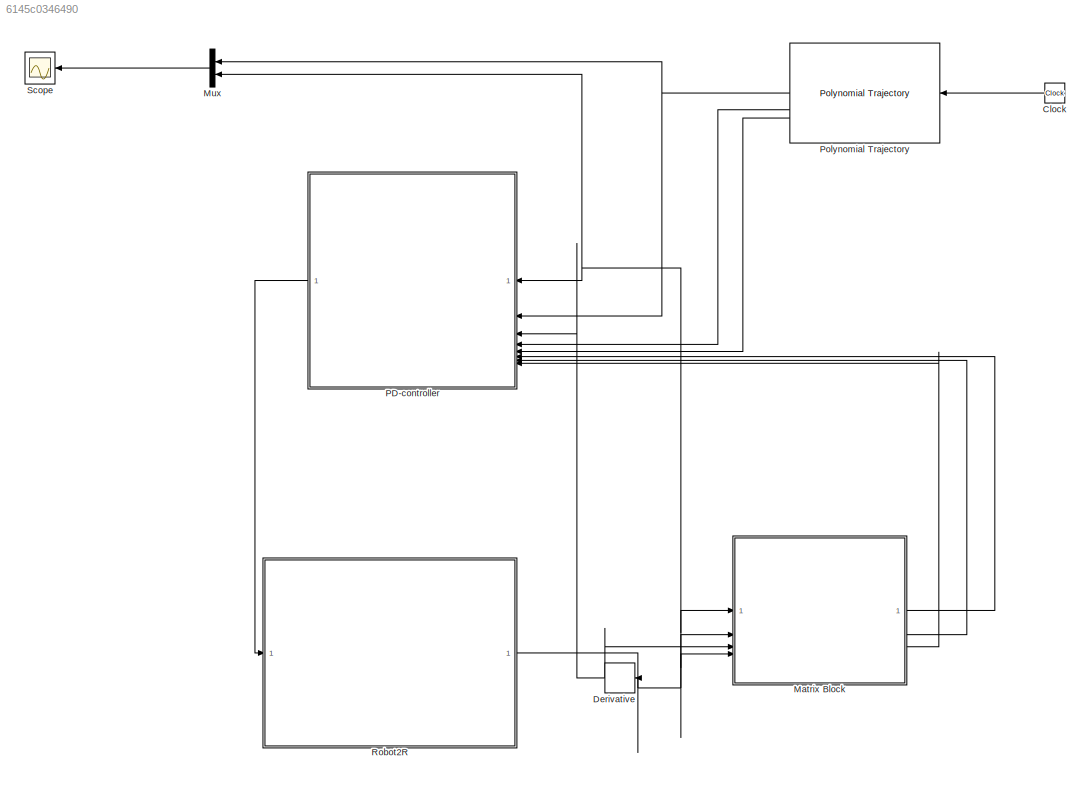
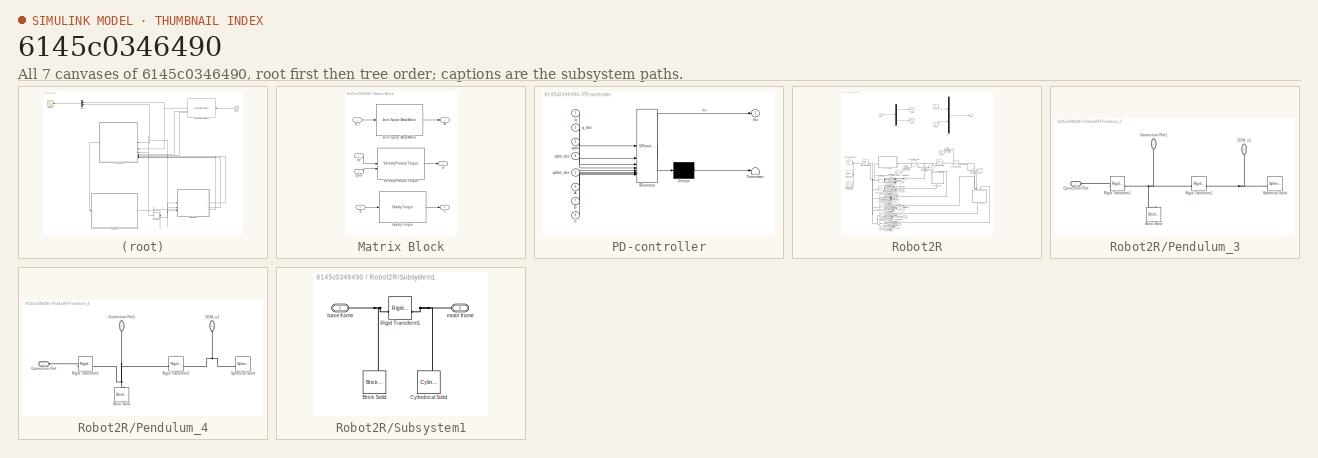
[diagram: thumbnail index - all 7 canvases of the model, root first then tree order]
MODEL slx_6145c0346490
KIND model
CONFIG AbsTol = 1e-3
CONFIG EnableMultiTasking = on
CONFIG FixedStep = auto
CONFIG MaxStep = auto
CONFIG MinStep = auto
CONFIG RelTol = 1e-3
CONFIG SampleTimeConstraint = Unconstrained
CONFIG SolverName = VariableStepAuto
CONFIG StartTime = 0.0
CONFIG StopTime = 100
BLOCK [Clock] Clock
BLOCK [Derivative] Derivative
BLOCK [SubSystem] Matrix Block
BLOCK [Outport] Matrix Block/A
BLOCK [Outport] Matrix Block/B
  Port = 2
BLOCK [Outport] Matrix Block/C
  Port = 3
BLOCK [Reference] Matrix Block/Gravity Torque  REF=robotmaniplib/Gravity Torque
  SourceBlock = robotmaniplib/Gravity Torque
  SourceType = Gravity Torque
BLOCK [Reference] Matrix Block/Joint Space Mass Matrix  REF=robotmaniplib/Joint Space Mass Matrix
  SourceBlock = robotmaniplib/Joint Space Mass Matrix
  SourceType = Joint Space Mass Matrix
BLOCK [Reference] Matrix Block/Velocity Product Torque  REF=robotmaniplib/Velocity Product Torque
  SourceBlock = robotmaniplib/Velocity Product Torque
  SourceType = Velocity Product Torque
BLOCK [Inport] Matrix Block/q
  Port = 4
BLOCK [Inport] Matrix Block/q_r
BLOCK [Inport] Matrix Block/qdot
  Port = 3
BLOCK [Inport] Matrix Block/qr
  Port = 2
BLOCK [Mux] Mux
  DisplayOption = bar
  Inputs = 2
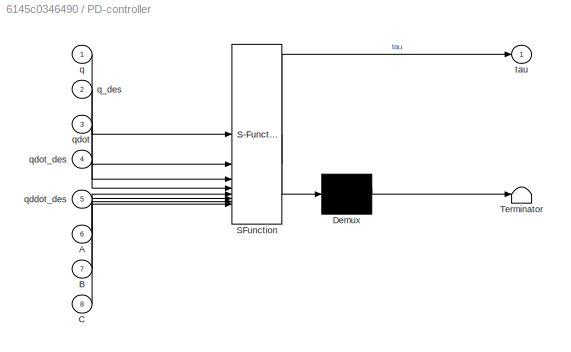
BLOCK [SubSystem] PD-controller
  ErrorFcn = Stateflow.Translate.translate
  LibrarySourceBlock = simulink/User-Defined\nFunctions/MATLAB Function
  PermitHierarchicalResolution = ExplicitOnly
  SFBlockType = MATLAB Function
  TreatAsAtomicUnit = on
BLOCK [Demux] PD-controller/ Demux 
  Outputs = 1
BLOCK [S-Function] PD-controller/ SFunction 
  EnableBusSupport = on
  FunctionName = sf_sfun
  PortCounts = [8 2]
  SFcnIsStateOwnerBlock = off
  SFunctionDeploymentMode = off
  Tag = Stateflow S-Function 1
BLOCK [Terminator] PD-controller/ Terminator 
BLOCK [Inport] PD-controller/A
  Port = 6
BLOCK [Inport] PD-controller/B
  Port = 7
BLOCK [Inport] PD-controller/C
  Port = 8
BLOCK [Inport] PD-controller/q
BLOCK [Inport] PD-controller/q_des
  Port = 2
BLOCK [Inport] PD-controller/qddot_des
  Port = 5
BLOCK [Inport] PD-controller/qdot
  Port = 3
BLOCK [Inport] PD-controller/qdot_des
  Port = 4
BLOCK [Outport] PD-controller/tau
BLOCK [Reference] Polynomial Trajectory  REF=robotcorelib/Polynomial Trajectory
  LibrarySourceBlock = robotutilslib/Polynomial Trajectory
  SourceBlock = robotcorelib/Polynomial Trajectory
  SourceType = robotics.slcore.internal.block.PolyTrajSys
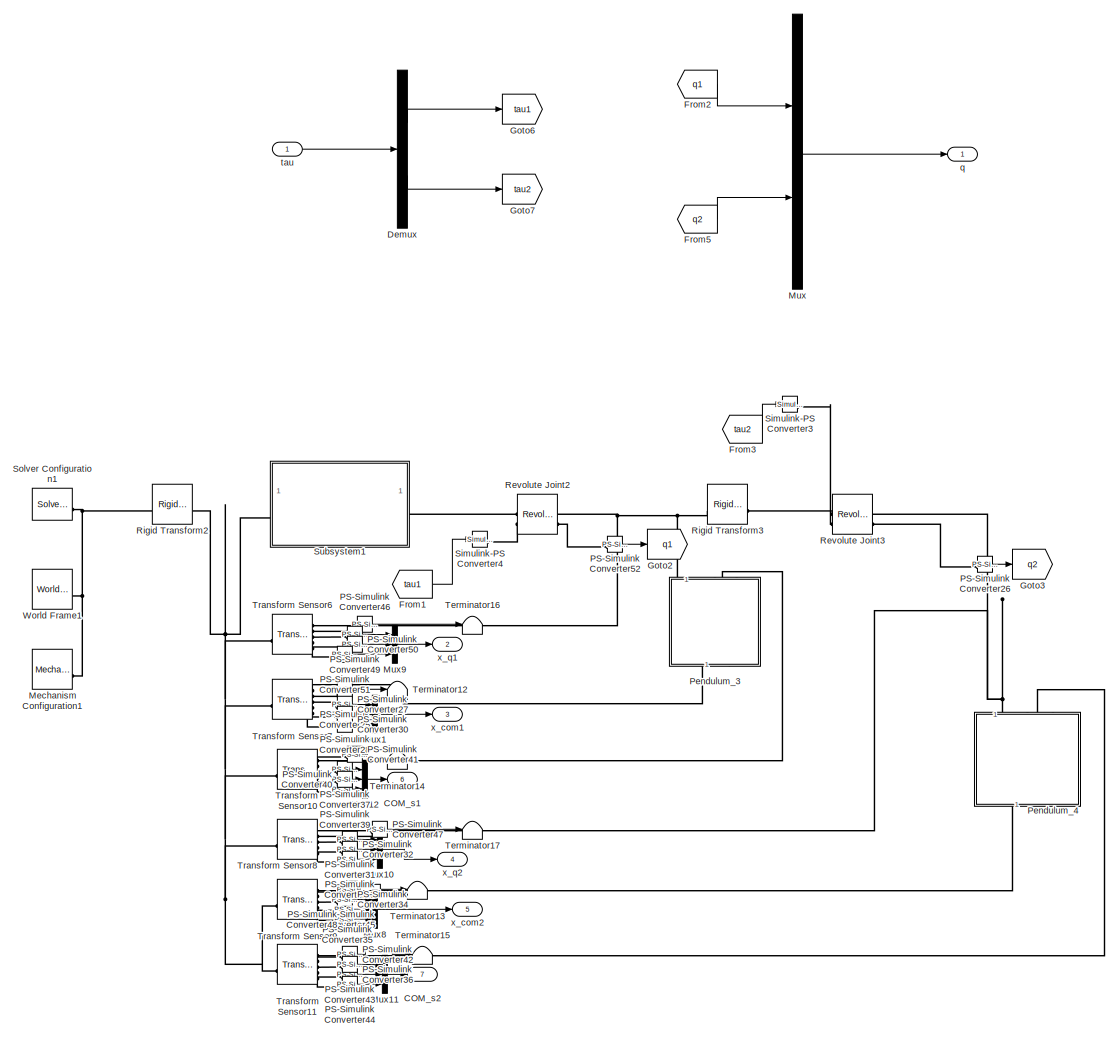
[diagram: Robot2R - part 1/1, most of the canvas]
BLOCK [SubSystem] Robot2R
BLOCK [Outport] Robot2R/COM_s1
  Port = 6
BLOCK [Outport] Robot2R/COM_s2
  Port = 7
BLOCK [Demux] Robot2R/Demux
  Outputs = 2
BLOCK [From] Robot2R/From1
  GotoTag = tau1
BLOCK [From] Robot2R/From2
  GotoTag = q1
BLOCK [From] Robot2R/From3
  GotoTag = tau2
BLOCK [From] Robot2R/From5
  GotoTag = q2
BLOCK [Goto] Robot2R/Goto2
  GotoTag = q1
BLOCK [Goto] Robot2R/Goto3
  GotoTag = q2
BLOCK [Goto] Robot2R/Goto6
  GotoTag = tau1
BLOCK [Goto] Robot2R/Goto7
  GotoTag = tau2
BLOCK [Reference] Robot2R/Mechanism Configuration1  REF=sm_lib/Utilities/Mechanism
Configuration
  SourceBlock = sm_lib/Utilities/Mechanism\nConfiguration
  SourceType = Mechanism\nConfiguration
BLOCK [Mux] Robot2R/Mux
  DisplayOption = bar
  Inputs = 2
BLOCK [Mux] Robot2R/Mux1
  DisplayOption = bar
  Inputs = 3
BLOCK [Mux] Robot2R/Mux10
  DisplayOption = bar
  Inputs = 3
BLOCK [Mux] Robot2R/Mux11
  DisplayOption = bar
  Inputs = 3
BLOCK [Mux] Robot2R/Mux12
  DisplayOption = bar
  Inputs = 3
BLOCK [Mux] Robot2R/Mux8
  DisplayOption = bar
  Inputs = 3
BLOCK [Mux] Robot2R/Mux9
  DisplayOption = bar
  Inputs = 3
BLOCK [Reference] Robot2R/PS-Simulink Converter25  REF=nesl_utility/PS-Simulink
Converter
  SourceBlock = nesl_utility/PS-Simulink\nConverter
  SourceType = PS-Simulink\nConverter
BLOCK [Reference] Robot2R/PS-Simulink Converter26  REF=nesl_utility/PS-Simulink
Converter
  SourceBlock = nesl_utility/PS-Simulink\nConverter
  SourceType = PS-Simulink\nConverter
BLOCK [Reference] Robot2R/PS-Simulink Converter27  REF=nesl_utility/PS-Simulink
Converter
  SourceBlock = nesl_utility/PS-Simulink\nConverter
  SourceType = PS-Simulink\nConverter
BLOCK [Reference] Robot2R/PS-Simulink Converter28  REF=nesl_utility/PS-Simulink
Converter
  SourceBlock = nesl_utility/PS-Simulink\nConverter
  SourceType = PS-Simulink\nConverter
BLOCK [Reference] Robot2R/PS-Simulink Converter30  REF=nesl_utility/PS-Simulink
Converter
  SourceBlock = nesl_utility/PS-Simulink\nConverter
  SourceType = PS-Simulink\nConverter
BLOCK [Reference] Robot2R/PS-Simulink Converter31  REF=nesl_utility/PS-Simulink
Converter
  SourceBlock = nesl_utility/PS-Simulink\nConverter
  SourceType = PS-Simulink\nConverter
BLOCK [Reference] Robot2R/PS-Simulink Converter32  REF=nesl_utility/PS-Simulink
Converter
  SourceBlock = nesl_utility/PS-Simulink\nConverter
  SourceType = PS-Simulink\nConverter
BLOCK [Reference] Robot2R/PS-Simulink Converter33  REF=nesl_utility/PS-Simulink
Converter
  SourceBlock = nesl_utility/PS-Simulink\nConverter
  SourceType = PS-Simulink\nConverter
BLOCK [Reference] Robot2R/PS-Simulink Converter34  REF=nesl_utility/PS-Simulink
Converter
  SourceBlock = nesl_utility/PS-Simulink\nConverter
  SourceType = PS-Simulink\nConverter
BLOCK [Reference] Robot2R/PS-Simulink Converter35  REF=nesl_utility/PS-Simulink
Converter
  SourceBlock = nesl_utility/PS-Simulink\nConverter
  SourceType = PS-Simulink\nConverter
BLOCK [Reference] Robot2R/PS-Simulink Converter36  REF=nesl_utility/PS-Simulink
Converter
  SourceBlock = nesl_utility/PS-Simulink\nConverter
  SourceType = PS-Simulink\nConverter
BLOCK [Reference] Robot2R/PS-Simulink Converter37  REF=nesl_utility/PS-Simulink
Converter
  SourceBlock = nesl_utility/PS-Simulink\nConverter
  SourceType = PS-Simulink\nConverter
BLOCK [Reference] Robot2R/PS-Simulink Converter39  REF=nesl_utility/PS-Simulink
Converter
  SourceBlock = nesl_utility/PS-Simulink\nConverter
  SourceType = PS-Simulink\nConverter
BLOCK [Reference] Robot2R/PS-Simulink Converter40  REF=nesl_utility/PS-Simulink
Converter
  SourceBlock = nesl_utility/PS-Simulink\nConverter
  SourceType = PS-Simulink\nConverter
BLOCK [Reference] Robot2R/PS-Simulink Converter41  REF=nesl_utility/PS-Simulink
Converter
  SourceBlock = nesl_utility/PS-Simulink\nConverter
  SourceType = PS-Simulink\nConverter
BLOCK [Reference] Robot2R/PS-Simulink Converter42  REF=nesl_utility/PS-Simulink
Converter
  SourceBlock = nesl_utility/PS-Simulink\nConverter
  SourceType = PS-Simulink\nConverter
BLOCK [Reference] Robot2R/PS-Simulink Converter43  REF=nesl_utility/PS-Simulink
Converter
  SourceBlock = nesl_utility/PS-Simulink\nConverter
  SourceType = PS-Simulink\nConverter
BLOCK [Reference] Robot2R/PS-Simulink Converter44  REF=nesl_utility/PS-Simulink
Converter
  SourceBlock = nesl_utility/PS-Simulink\nConverter
  SourceType = PS-Simulink\nConverter
BLOCK [Reference] Robot2R/PS-Simulink Converter45  REF=nesl_utility/PS-Simulink
Converter
  SourceBlock = nesl_utility/PS-Simulink\nConverter
  SourceType = PS-Simulink\nConverter
BLOCK [Reference] Robot2R/PS-Simulink Converter46  REF=nesl_utility/PS-Simulink
Converter
  SourceBlock = nesl_utility/PS-Simulink\nConverter
  SourceType = PS-Simulink\nConverter
BLOCK [Reference] Robot2R/PS-Simulink Converter47  REF=nesl_utility/PS-Simulink
Converter
  SourceBlock = nesl_utility/PS-Simulink\nConverter
  SourceType = PS-Simulink\nConverter
BLOCK [Reference] Robot2R/PS-Simulink Converter48  REF=nesl_utility/PS-Simulink
Converter
  SourceBlock = nesl_utility/PS-Simulink\nConverter
  SourceType = PS-Simulink\nConverter
BLOCK [Reference] Robot2R/PS-Simulink Converter49  REF=nesl_utility/PS-Simulink
Converter
  SourceBlock = nesl_utility/PS-Simulink\nConverter
  SourceType = PS-Simulink\nConverter
BLOCK [Reference] Robot2R/PS-Simulink Converter50  REF=nesl_utility/PS-Simulink
Converter
  SourceBlock = nesl_utility/PS-Simulink\nConverter
  SourceType = PS-Simulink\nConverter
BLOCK [Reference] Robot2R/PS-Simulink Converter51  REF=nesl_utility/PS-Simulink
Converter
  SourceBlock = nesl_utility/PS-Simulink\nConverter
  SourceType = PS-Simulink\nConverter
BLOCK [Reference] Robot2R/PS-Simulink Converter52  REF=nesl_utility/PS-Simulink
Converter
  SourceBlock = nesl_utility/PS-Simulink\nConverter
  SourceType = PS-Simulink\nConverter
BLOCK [SubSystem] Robot2R/Pendulum_3
  NameLocation = left
BLOCK [Reference] Robot2R/Pendulum_3/Brick Solid  REF=sm_lib/Body Elements/Brick Solid
  NameLocation = right
  SourceBlock = sm_lib/Body Elements/Brick Solid
  SourceType = Brick Solid
BLOCK [PMIOPort] Robot2R/Pendulum_3/COM_s1
  NameLocation = left
  Port = 3
  Side = Left
BLOCK [PMIOPort] Robot2R/Pendulum_3/Connection Port
  Side = Left
BLOCK [PMIOPort] Robot2R/Pendulum_3/Connection Port1
  NameLocation = left
  Port = 2
  Side = Right
BLOCK [Reference] Robot2R/Pendulum_3/Rigid Transform1  REF=sm_lib/Frames and
Transforms/Rigid
Transform
  SourceBlock = sm_lib/Frames and\nTransforms/Rigid\nTransform
  SourceType = Rigid\nTransform
BLOCK [Reference] Robot2R/Pendulum_3/Rigid Transform2  REF=sm_lib/Frames and
Transforms/Rigid
Transform
  SourceBlock = sm_lib/Frames and\nTransforms/Rigid\nTransform
  SourceType = Rigid\nTransform
BLOCK [Reference] Robot2R/Pendulum_3/Spherical Solid  REF=sm_lib/Body Elements/Spherical Solid
  SourceBlock = sm_lib/Body Elements/Spherical Solid
  SourceType = Spherical Solid
BLOCK [SubSystem] Robot2R/Pendulum_4
  NameLocation = left
BLOCK [Reference] Robot2R/Pendulum_4/Brick Solid  REF=sm_lib/Body Elements/Brick Solid
  NameLocation = right
  SourceBlock = sm_lib/Body Elements/Brick Solid
  SourceType = Brick Solid
BLOCK [PMIOPort] Robot2R/Pendulum_4/COM_s2
  NameLocation = left
  Port = 3
  Side = Left
BLOCK [PMIOPort] Robot2R/Pendulum_4/Connection Port
  Side = Left
BLOCK [PMIOPort] Robot2R/Pendulum_4/Connection Port1
  NameLocation = left
  Port = 2
  Side = Right
BLOCK [Reference] Robot2R/Pendulum_4/Rigid Transform1  REF=sm_lib/Frames and
Transforms/Rigid
Transform
  SourceBlock = sm_lib/Frames and\nTransforms/Rigid\nTransform
  SourceType = Rigid\nTransform
BLOCK [Reference] Robot2R/Pendulum_4/Rigid Transform2  REF=sm_lib/Frames and
Transforms/Rigid
Transform
  SourceBlock = sm_lib/Frames and\nTransforms/Rigid\nTransform
  SourceType = Rigid\nTransform
BLOCK [Reference] Robot2R/Pendulum_4/Spherical Solid  REF=sm_lib/Body Elements/Spherical Solid
  SourceBlock = sm_lib/Body Elements/Spherical Solid
  SourceType = Spherical Solid
BLOCK [Reference] Robot2R/Revolute Joint2  REF=sm_lib/Joints/Revolute Joint
  SourceBlock = sm_lib/Joints/Revolute Joint
  SourceType = Revolute Joint
BLOCK [Reference] Robot2R/Revolute Joint3  REF=sm_lib/Joints/Revolute Joint
  SourceBlock = sm_lib/Joints/Revolute Joint
  SourceType = Revolute Joint
BLOCK [Reference] Robot2R/Rigid Transform2  REF=sm_lib/Frames and
Transforms/Rigid
Transform
  SourceBlock = sm_lib/Frames and\nTransforms/Rigid\nTransform
  SourceType = Rigid\nTransform
BLOCK [Reference] Robot2R/Rigid Transform3  REF=sm_lib/Frames and
Transforms/Rigid
Transform
  SourceBlock = sm_lib/Frames and\nTransforms/Rigid\nTransform
  SourceType = Rigid\nTransform
BLOCK [Reference] Robot2R/Simulink-PS Converter3  REF=nesl_utility/Simulink-PS
Converter
  SourceBlock = nesl_utility/Simulink-PS\nConverter
  SourceType = Simulink-PS\nConverter
BLOCK [Reference] Robot2R/Simulink-PS Converter4  REF=nesl_utility/Simulink-PS
Converter
  NameLocation = left
  SourceBlock = nesl_utility/Simulink-PS\nConverter
  SourceType = Simulink-PS\nConverter
BLOCK [Reference] Robot2R/Solver Configuration1  REF=nesl_utility/Solver
Configuration
  SourceBlock = nesl_utility/Solver\nConfiguration
  SourceType = Solver\nConfiguration
BLOCK [SubSystem] Robot2R/Subsystem1
BLOCK [Reference] Robot2R/Subsystem1/Brick Solid  REF=sm_lib/Body Elements/Brick Solid
  SourceBlock = sm_lib/Body Elements/Brick Solid
  SourceType = Brick Solid
BLOCK [Reference] Robot2R/Subsystem1/Cylindrical Solid  REF=sm_lib/Body Elements/Cylindrical Solid
  NameLocation = right
  SourceBlock = sm_lib/Body Elements/Cylindrical Solid
  SourceType = Cylindrical Solid
BLOCK [Reference] Robot2R/Subsystem1/Rigid Transform1  REF=sm_lib/Frames and
Transforms/Rigid
Transform
  SourceBlock = sm_lib/Frames and\nTransforms/Rigid\nTransform
  SourceType = Rigid\nTransform
BLOCK [PMIOPort] Robot2R/Subsystem1/base frame
  Side = Left
BLOCK [PMIOPort] Robot2R/Subsystem1/motor frame
  Port = 2
  Side = Right
BLOCK [Terminator] Robot2R/Terminator12
BLOCK [Terminator] Robot2R/Terminator13
BLOCK [Terminator] Robot2R/Terminator14
BLOCK [Terminator] Robot2R/Terminator15
BLOCK [Terminator] Robot2R/Terminator16
BLOCK [Terminator] Robot2R/Terminator17
BLOCK [Reference] Robot2R/Transform Sensor10  REF=sm_lib/Frames and
Transforms/Transform
Sensor
  SourceBlock = sm_lib/Frames and\nTransforms/Transform\nSensor
  SourceType = Transform\nSensor
BLOCK [Reference] Robot2R/Transform Sensor11  REF=sm_lib/Frames and
Transforms/Transform
Sensor
  SourceBlock = sm_lib/Frames and\nTransforms/Transform\nSensor
  SourceType = Transform\nSensor
BLOCK [Reference] Robot2R/Transform Sensor6  REF=sm_lib/Frames and
Transforms/Transform
Sensor
  SourceBlock = sm_lib/Frames and\nTransforms/Transform\nSensor
  SourceType = Transform\nSensor
BLOCK [Reference] Robot2R/Transform Sensor7  REF=sm_lib/Frames and
Transforms/Transform
Sensor
  SourceBlock = sm_lib/Frames and\nTransforms/Transform\nSensor
  SourceType = Transform\nSensor
BLOCK [Reference] Robot2R/Transform Sensor8  REF=sm_lib/Frames and
Transforms/Transform
Sensor
  SourceBlock = sm_lib/Frames and\nTransforms/Transform\nSensor
  SourceType = Transform\nSensor
BLOCK [Reference] Robot2R/Transform Sensor9  REF=sm_lib/Frames and
Transforms/Transform
Sensor
  SourceBlock = sm_lib/Frames and\nTransforms/Transform\nSensor
  SourceType = Transform\nSensor
BLOCK [Reference] Robot2R/World Frame1  REF=sm_lib/Frames and
Transforms/World Frame
  SourceBlock = sm_lib/Frames and\nTransforms/World Frame
  SourceType = World Frame
BLOCK [Outport] Robot2R/q
BLOCK [Inport] Robot2R/tau
BLOCK [Outport] Robot2R/x_com1
  Port = 3
BLOCK [Outport] Robot2R/x_com2
  Port = 5
BLOCK [Outport] Robot2R/x_q1
  Port = 2
BLOCK [Outport] Robot2R/x_q2
  Port = 4
BLOCK [Scope] Scope
  Floating = off
  NumInputPorts = 1
  ScopeSpecificationString = Simulink.scopes.TimeScopeBlockCfg('CurrentConfiguration', extmgr.ConfigurationSet(extmgr.Configuration('Core','General UI',true),extmgr.Configuration('Core','Source UI',true),extmgr.Configuration('Sources','WiredSimulink',true),extmgr.Configuration('Visuals','Time Domain',true,'SerializedDisplays',{struct('MinYLimReal','-2.39157','MaxYLimReal','1.52377','YLabelReal','','MinYLimMag','0.00000','MaxY...<+1491ch>
LINE Clock:1 -> Polynomial Trajectory:1
NET Derivative:1 -> Matrix Block:3, PD-controller:3
LINE Matrix Block/Gravity Torque:1 -> Matrix Block/C:1
LINE Matrix Block/Joint Space Mass Matrix:1 -> Matrix Block/A:1
LINE Matrix Block/Velocity Product Torque:1 -> Matrix Block/B:1
LINE Matrix Block/q:1 -> Matrix Block/Gravity Torque:1
LINE Matrix Block/q_r:1 -> Matrix Block/Joint Space Mass Matrix:1
LINE Matrix Block/qdot:1 -> Matrix Block/Velocity Product Torque:2
LINE Matrix Block/qr:1 -> Matrix Block/Velocity Product Torque:1
LINE Matrix Block:1 -> PD-controller:6
LINE Matrix Block:2 -> PD-controller:7
LINE Matrix Block:3 -> PD-controller:8
LINE Mux:1 -> Scope:1
LINE PD-controller:1 -> Robot2R:1
NET Polynomial Trajectory:1 -> Mux:1, PD-controller:2
LINE Polynomial Trajectory:2 -> PD-controller:4
LINE Polynomial Trajectory:3 -> PD-controller:5
LINE Robot2R/Demux:1 -> Robot2R/Goto6:1
LINE Robot2R/Demux:2 -> Robot2R/Goto7:1
LINE Robot2R/From1:1 -> Robot2R/Simulink-PS Converter4:1
LINE Robot2R/From2:1 -> Robot2R/Mux:1
LINE Robot2R/From3:1 -> Robot2R/Simulink-PS Converter3:1
LINE Robot2R/From5:1 -> Robot2R/Mux:2
LINE Robot2R/Mux10:1 -> Robot2R/x_q2:1
LINE Robot2R/Mux11:1 -> Robot2R/COM_s2:1
LINE Robot2R/Mux12:1 -> Robot2R/COM_s1:1
LINE Robot2R/Mux1:1 -> Robot2R/x_com1:1
LINE Robot2R/Mux8:1 -> Robot2R/x_com2:1
LINE Robot2R/Mux9:1 -> Robot2R/x_q1:1
LINE Robot2R/Mux:1 -> Robot2R/q:1
LINE Robot2R/PS-Simulink Converter25:1 -> Robot2R/Terminator12:1
LINE Robot2R/PS-Simulink Converter26:1 -> Robot2R/Goto3:1
LINE Robot2R/PS-Simulink Converter27:1 -> Robot2R/Mux1:1
LINE Robot2R/PS-Simulink Converter28:1 -> Robot2R/Mux1:2
LINE Robot2R/PS-Simulink Converter30:1 -> Robot2R/Mux1:3
LINE Robot2R/PS-Simulink Converter31:1 -> Robot2R/Mux10:1
LINE Robot2R/PS-Simulink Converter32:1 -> Robot2R/Mux10:2
LINE Robot2R/PS-Simulink Converter33:1 -> Robot2R/Mux10:3
LINE Robot2R/PS-Simulink Converter34:1 -> Robot2R/Mux8:1
LINE Robot2R/PS-Simulink Converter35:1 -> Robot2R/Mux8:2
LINE Robot2R/PS-Simulink Converter36:1 -> Robot2R/Mux11:2
LINE Robot2R/PS-Simulink Converter37:1 -> Robot2R/Mux12:1
LINE Robot2R/PS-Simulink Converter39:1 -> Robot2R/Mux12:3
LINE Robot2R/PS-Simulink Converter40:1 -> Robot2R/Mux12:2
LINE Robot2R/PS-Simulink Converter41:1 -> Robot2R/Terminator14:1
LINE Robot2R/PS-Simulink Converter42:1 -> Robot2R/Terminator15:1
LINE Robot2R/PS-Simulink Converter43:1 -> Robot2R/Mux11:1
LINE Robot2R/PS-Simulink Converter44:1 -> Robot2R/Mux11:3
LINE Robot2R/PS-Simulink Converter45:1 -> Robot2R/Terminator13:1
LINE Robot2R/PS-Simulink Converter46:1 -> Robot2R/Terminator16:1
LINE Robot2R/PS-Simulink Converter47:1 -> Robot2R/Terminator17:1
LINE Robot2R/PS-Simulink Converter48:1 -> Robot2R/Mux8:3
LINE Robot2R/PS-Simulink Converter49:1 -> Robot2R/Mux9:1
LINE Robot2R/PS-Simulink Converter50:1 -> Robot2R/Mux9:2
LINE Robot2R/PS-Simulink Converter51:1 -> Robot2R/Mux9:3
LINE Robot2R/PS-Simulink Converter52:1 -> Robot2R/Goto2:1
LINE Robot2R/tau:1 -> Robot2R/Demux:1
NET Robot2R:1 -> Derivative:1, Matrix Block:1, Matrix Block:2, Matrix Block:4, Mux:2, PD-controller:1
PNET net1: Robot2R/Mechanism Configuration1:RConn1 -- Robot2R/Rigid Transform2:LConn1 -- Robot2R/Solver Configuration1:RConn1 -- Robot2R/World Frame1:RConn1
PLINE Robot2R/PS-Simulink Converter25:LConn1 -- Robot2R/Transform Sensor7:RConn2
PLINE Robot2R/PS-Simulink Converter26:LConn1 -- Robot2R/Revolute Joint3:RConn2
PLINE Robot2R/PS-Simulink Converter27:LConn1 -- Robot2R/Transform Sensor7:RConn3
PLINE Robot2R/PS-Simulink Converter28:LConn1 -- Robot2R/Transform Sensor7:RConn4
PLINE Robot2R/PS-Simulink Converter30:LConn1 -- Robot2R/Transform Sensor7:RConn5
PLINE Robot2R/PS-Simulink Converter31:LConn1 -- Robot2R/Transform Sensor8:RConn3
PLINE Robot2R/PS-Simulink Converter32:LConn1 -- Robot2R/Transform Sensor8:RConn4
PLINE Robot2R/PS-Simulink Converter33:LConn1 -- Robot2R/Transform Sensor8:RConn5
PLINE Robot2R/PS-Simulink Converter34:LConn1 -- Robot2R/Transform Sensor9:RConn3
PLINE Robot2R/PS-Simulink Converter35:LConn1 -- Robot2R/Transform Sensor9:RConn4
PLINE Robot2R/PS-Simulink Converter36:LConn1 -- Robot2R/Transform Sensor11:RConn4
PLINE Robot2R/PS-Simulink Converter37:LConn1 -- Robot2R/Transform Sensor10:RConn3
PLINE Robot2R/PS-Simulink Converter39:LConn1 -- Robot2R/Transform Sensor10:RConn5
PLINE Robot2R/PS-Simulink Converter40:LConn1 -- Robot2R/Transform Sensor10:RConn4
PLINE Robot2R/PS-Simulink Converter41:LConn1 -- Robot2R/Transform Sensor10:RConn2
PLINE Robot2R/PS-Simulink Converter42:LConn1 -- Robot2R/Transform Sensor11:RConn2
PLINE Robot2R/PS-Simulink Converter43:LConn1 -- Robot2R/Transform Sensor11:RConn3
PLINE Robot2R/PS-Simulink Converter44:LConn1 -- Robot2R/Transform Sensor11:RConn5
PLINE Robot2R/PS-Simulink Converter45:LConn1 -- Robot2R/Transform Sensor9:RConn2
PLINE Robot2R/PS-Simulink Converter46:LConn1 -- Robot2R/Transform Sensor6:RConn2
PLINE Robot2R/PS-Simulink Converter47:LConn1 -- Robot2R/Transform Sensor8:RConn2
PLINE Robot2R/PS-Simulink Converter48:LConn1 -- Robot2R/Transform Sensor9:RConn5
PLINE Robot2R/PS-Simulink Converter49:LConn1 -- Robot2R/Transform Sensor6:RConn3
PLINE Robot2R/PS-Simulink Converter50:LConn1 -- Robot2R/Transform Sensor6:RConn4
PLINE Robot2R/PS-Simulink Converter51:LConn1 -- Robot2R/Transform Sensor6:RConn5
PLINE Robot2R/PS-Simulink Converter52:LConn1 -- Robot2R/Revolute Joint2:RConn2
PNET net2: Robot2R/Pendulum_3/Brick Solid:RConn1 -- Robot2R/Pendulum_3/Connection Port1:RConn1 -- Robot2R/Pendulum_3/Rigid Transform1:LConn1 -- Robot2R/Pendulum_3/Rigid Transform2:LConn1
PNET net3: Robot2R/Pendulum_3/COM_s1:RConn1 -- Robot2R/Pendulum_3/Rigid Transform2:RConn1 -- Robot2R/Pendulum_3/Spherical Solid:RConn1
PLINE Robot2R/Pendulum_3/Connection Port:RConn1 -- Robot2R/Pendulum_3/Rigid Transform1:RConn1
PNET net4: Robot2R/Pendulum_3:LConn1 -- Robot2R/Revolute Joint2:RConn1 -- Robot2R/Rigid Transform3:LConn1 -- Robot2R/Transform Sensor6:RConn1
PLINE Robot2R/Pendulum_3:LConn2 -- Robot2R/Transform Sensor10:RConn1
PLINE Robot2R/Pendulum_3:RConn1 -- Robot2R/Transform Sensor7:RConn1
PNET net5: Robot2R/Pendulum_4/Brick Solid:RConn1 -- Robot2R/Pendulum_4/Connection Port1:RConn1 -- Robot2R/Pendulum_4/Rigid Transform1:LConn1 -- Robot2R/Pendulum_4/Rigid Transform2:LConn1
PNET net6: Robot2R/Pendulum_4/COM_s2:RConn1 -- Robot2R/Pendulum_4/Rigid Transform2:RConn1 -- Robot2R/Pendulum_4/Spherical Solid:RConn1
PLINE Robot2R/Pendulum_4/Connection Port:RConn1 -- Robot2R/Pendulum_4/Rigid Transform1:RConn1
PNET net7: Robot2R/Pendulum_4:LConn1 -- Robot2R/Revolute Joint3:RConn1 -- Robot2R/Transform Sensor8:RConn1
PLINE Robot2R/Pendulum_4:LConn2 -- Robot2R/Transform Sensor11:RConn1
PLINE Robot2R/Pendulum_4:RConn1 -- Robot2R/Transform Sensor9:RConn1
PLINE Robot2R/Revolute Joint2:LConn1 -- Robot2R/Subsystem1:RConn1
PLINE Robot2R/Revolute Joint2:LConn2 -- Robot2R/Simulink-PS Converter4:RConn1
PLINE Robot2R/Revolute Joint3:LConn1 -- Robot2R/Rigid Transform3:RConn1
PLINE Robot2R/Revolute Joint3:LConn2 -- Robot2R/Simulink-PS Converter3:RConn1
PNET net8: Robot2R/Rigid Transform2:RConn1 -- Robot2R/Subsystem1:LConn1 -- Robot2R/Transform Sensor10:LConn1 -- Robot2R/Transform Sensor11:LConn1 -- Robot2R/Transform Sensor6:LConn1 -- Robot2R/Transform Sensor7:LConn1 -- Robot2R/Transform Sensor8:LConn1 -- Robot2R/Transform Sensor9:LConn1
PNET net9: Robot2R/Subsystem1/Brick Solid:RConn1 -- Robot2R/Subsystem1/Rigid Transform1:LConn1 -- Robot2R/Subsystem1/base frame:RConn1
PNET net10: Robot2R/Subsystem1/Cylindrical Solid:RConn1 -- Robot2R/Subsystem1/Rigid Transform1:RConn1 -- Robot2R/Subsystem1/motor frame:RConn1
note: NET lines group one-source signal fan-out (src -> all destinations, sorted); 1:1 wires keep LINE; PNET lines group multi-terminal physical nets as a canonical sorted terminal list (undirected conserving connections); 2-terminal nets keep the pairwise PLINE form
CHART PD-controller states=1 transitions=1
  STATE_LABEL 'eML_blk_kernel()'
  STATE_LABEL 'SCRIPT:\nfunction tau = fcn(q, q_des, qdot, qdot_des, qddot_des, A,B,C)\n\nKp = 102;\nKd = 12;\n\n\ntau = A * (qddot_des + Kp*(q_des - q) + Kd*(qdot_des - qdot)) + B + C;\n'
CHART  states=0 transitions=0
